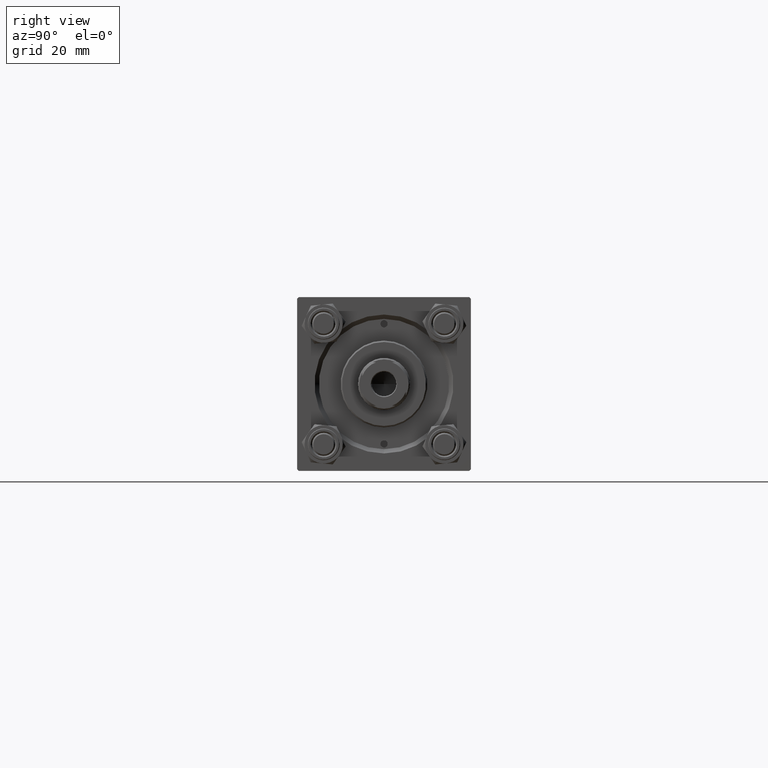
[diagram: clean part render]
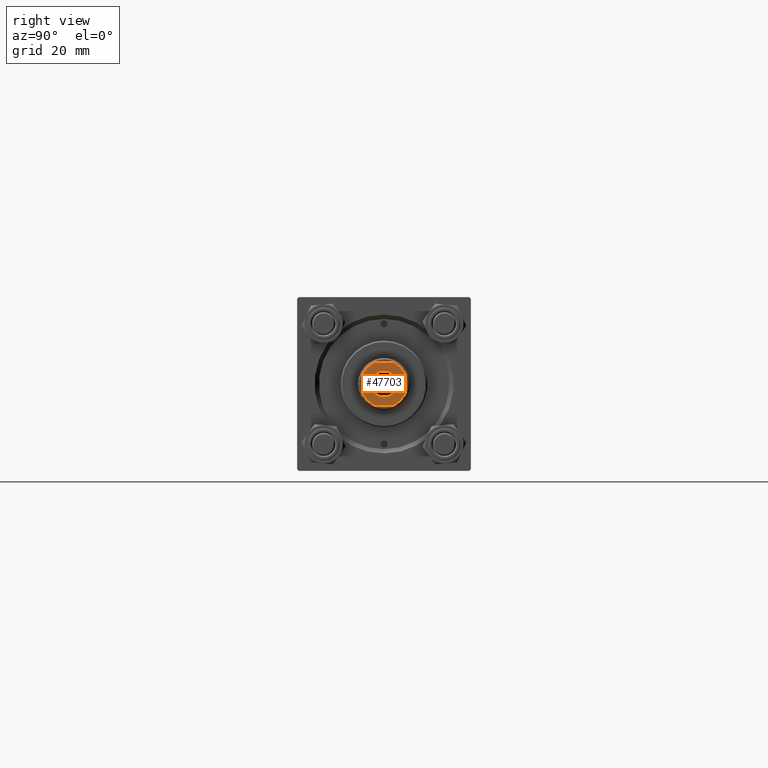
[diagram: same view with one face highlighted and labeled with its STEP entity id]
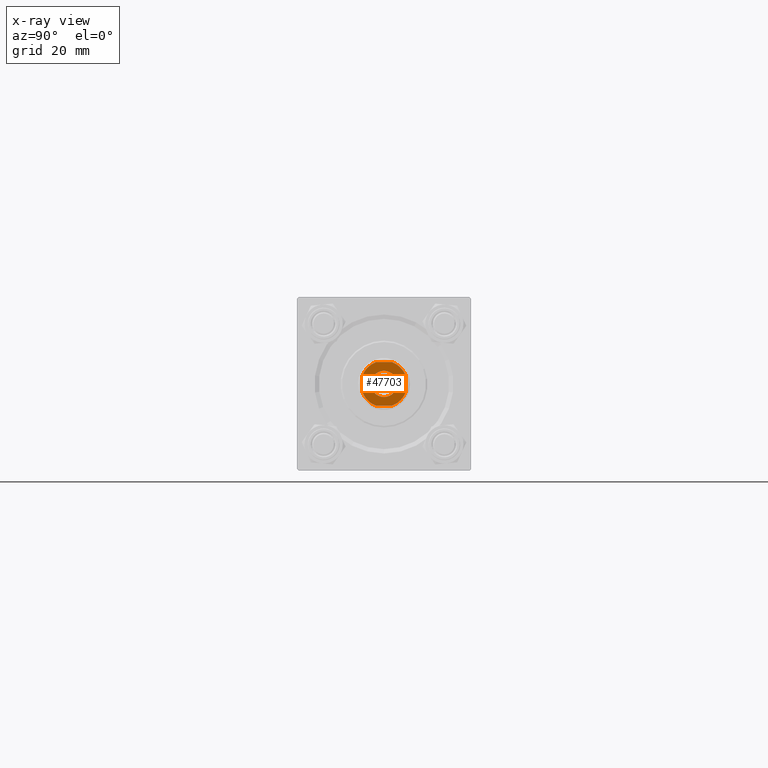
[diagram: x-ray of the same camera — body ghosted, the highlighted face saturated]
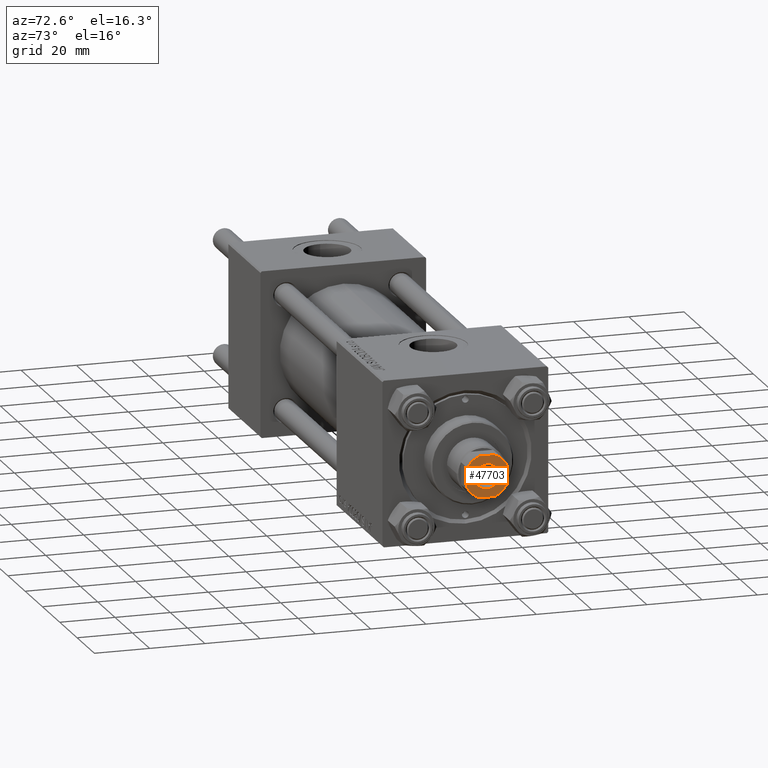
[diagram: same view with one face highlighted and labeled with its STEP entity id]
A machine part, right view. The second image highlights one B-rep face of the part: STEP entity #47703.
The next image is the same camera in x-ray: the body ghosted, the highlighted face saturated — about 0% of this face is hidden behind the body in this view.
A second angle (auxiliary view) of the same face is appended — the face is thin or edge-on in the first view.
In plain terms, the highlighted planar face has unit normal (1, 0, -0).
Its self-contained STEP definition (entity closure, byte-faithful):
#350 = DIRECTION ( 'NONE',  ( 1.000000000000000000, 0.000000000000000000, 0.000000000000000000 ) ) ;
#783 = DIRECTION ( 'NONE',  ( -0.000000000000000000, 0.000000000000000000, 1.000000000000000000 ) ) ;
#1038 = DIRECTION ( 'NONE',  ( 1.000000000000000000, 0.000000000000000000, 0.000000000000000000 ) ) ;
#1354 = DIRECTION ( 'NONE',  ( 0.000000000000000000, -0.000000000000000000, -1.000000000000000000 ) ) ;
#1366 = CARTESIAN_POINT ( 'NONE',  ( 7.500000000000000888, -2.783882181414929491, 166.0000000000000000 ) ) ;
#1853 = EDGE_CURVE ( 'NONE', #8274, #7431, #31455, .T. ) ;
#1884 = CARTESIAN_POINT ( 'NONE',  ( 0.000000000000000000, 0.000000000000000000, 166.0000000000000000 ) ) ;
#2526 = CARTESIAN_POINT ( 'NONE',  ( 7.500000000000000000, 7.500000000000000000, 166.0000000000000000 ) ) ;
#4205 = DIRECTION ( 'NONE',  ( -0.000000000000000000, 0.000000000000000000, 1.000000000000000000 ) ) ;
#5566 = DIRECTION ( 'NONE',  ( -1.156482317317871478E-16, 1.000000000000000000, -0.000000000000000000 ) ) ;
#5943 = ORIENTED_EDGE ( 'NONE', *, *, #1853, .T. ) ;
#6275 = DIRECTION ( 'NONE',  ( 1.000000000000000000, 0.000000000000000000, 0.000000000000000000 ) ) ;
#6680 = CIRCLE ( 'NONE', #35764, 4.550000000000039790 ) ;
#7431 = VERTEX_POINT ( 'NONE', #8761 ) ;
#7467 = EDGE_CURVE ( 'NONE', #30024, #44108, #16599, .T. ) ;
#7773 = EDGE_CURVE ( 'NONE', #7431, #8274, #6680, .T. ) ;
#7948 = AXIS2_PLACEMENT_3D ( 'NONE', #31765, #4205, #8750 ) ;
#8025 = DIRECTION ( 'NONE',  ( -0.000000000000000000, 0.000000000000000000, 1.000000000000000000 ) ) ;
#8232 = EDGE_CURVE ( 'NONE', #48111, #18994, #30495, .T. ) ;
#8240 = PLANE ( 'NONE',  #7948 ) ;
#8274 = VERTEX_POINT ( 'NONE', #26201 ) ;
#8439 = AXIS2_PLACEMENT_3D ( 'NONE', #42701, #8025, #38405 ) ;
#8750 = DIRECTION ( 'NONE',  ( 1.000000000000000000, 0.000000000000000000, 0.000000000000000000 ) ) ;
#8761 = CARTESIAN_POINT ( 'NONE',  ( 4.550000000000039790, 0.000000000000000000, 166.0000000000000000 ) ) ;
#9547 = CARTESIAN_POINT ( 'NONE',  ( -2.783882181415014312, 7.499999999999999112, 166.0000000000000000 ) ) ;
#9694 = CARTESIAN_POINT ( 'NONE',  ( -7.499999999999999112, 2.783882181415014756, 166.0000000000000000 ) ) ;
#10429 = AXIS2_PLACEMENT_3D ( 'NONE', #1884, #17309, #43649 ) ;
#10996 = AXIS2_PLACEMENT_3D ( 'NONE', #12458, #19784, #34995 ) ;
#12458 = CARTESIAN_POINT ( 'NONE',  ( 0.000000000000000000, 0.000000000000000000, 166.0000000000000000 ) ) ;
#13814 = ORIENTED_EDGE ( 'NONE', *, *, #7773, .T. ) ;
#14613 = DIRECTION ( 'NONE',  ( -0.000000000000000000, 0.000000000000000000, 1.000000000000000000 ) ) ;
#15529 = VECTOR ( 'NONE', #43673, 1000.000000000000000 ) ;
#16217 = EDGE_CURVE ( 'NONE', #34069, #48111, #43982, .T. ) ;
#16327 = FACE_OUTER_BOUND ( 'NONE', #20313, .T. ) ;
#16599 = LINE ( 'NONE', #40368, #15529 ) ;
#16728 = ORIENTED_EDGE ( 'NONE', *, *, #16217, .T. ) ;
#16871 = ORIENTED_EDGE ( 'NONE', *, *, #17311, .T. ) ;
#17309 = DIRECTION ( 'NONE',  ( 0.000000000000000000, -0.000000000000000000, -1.000000000000000000 ) ) ;
#17311 = EDGE_CURVE ( 'NONE', #25474, #29774, #31091, .T. ) ;
#17389 = VECTOR ( 'NONE', #350, 1000.000000000000000 ) ;
#18613 = ORIENTED_EDGE ( 'NONE', *, *, #7467, .T. ) ;
#18994 = VERTEX_POINT ( 'NONE', #9547 ) ;
#19123 = EDGE_CURVE ( 'NONE', #47716, #25474, #42858, .T. ) ;
#19784 = DIRECTION ( 'NONE',  ( -0.000000000000000000, 0.000000000000000000, 1.000000000000000000 ) ) ;
#20059 = CARTESIAN_POINT ( 'NONE',  ( 2.783882181414934820, 7.499999999999999112, 166.0000000000000000 ) ) ;
#20313 = EDGE_LOOP ( 'NONE', ( #42855, #16728, #22408, #25292, #18613, #45205, #29215, #16871 ) ) ;
#21310 = AXIS2_PLACEMENT_3D ( 'NONE', #22196, #14613, #6275 ) ;
#22196 = CARTESIAN_POINT ( 'NONE',  ( 0.000000000000000000, 0.000000000000000000, 166.0000000000000000 ) ) ;
#22408 = ORIENTED_EDGE ( 'NONE', *, *, #8232, .T. ) ;
#23672 = CARTESIAN_POINT ( 'NONE',  ( -2.783882181415011203, -7.500000000000000000, 166.0000000000000000 ) ) ;
#25292 = ORIENTED_EDGE ( 'NONE', *, *, #48349, .T. ) ;
#25474 = VERTEX_POINT ( 'NONE', #45317 ) ;
#26201 = CARTESIAN_POINT ( 'NONE',  ( -4.550000000000039790, 5.572142936120505645E-16, 166.0000000000000000 ) ) ;
#26698 = CARTESIAN_POINT ( 'NONE',  ( -7.500000000000000000, 7.499999999999998224, 166.0000000000000000 ) ) ;
#27223 = EDGE_LOOP ( 'NONE', ( #13814, #5943 ) ) ;
#29215 = ORIENTED_EDGE ( 'NONE', *, *, #19123, .T. ) ;
#29774 = VERTEX_POINT ( 'NONE', #1366 ) ;
#30024 = VERTEX_POINT ( 'NONE', #9694 ) ;
#30495 = LINE ( 'NONE', #26698, #40590 ) ;
#31091 = CIRCLE ( 'NONE', #8439, 7.999999999999972466 ) ;
#31455 = CIRCLE ( 'NONE', #10429, 4.550000000000039790 ) ;
#31765 = CARTESIAN_POINT ( 'NONE',  ( 0.000000000000000000, 0.000000000000000000, 166.0000000000000000 ) ) ;
#32214 = DIRECTION ( 'NONE',  ( 1.000000000000000000, 0.000000000000000000, 0.000000000000000000 ) ) ;
#32456 = CARTESIAN_POINT ( 'NONE',  ( 0.000000000000000000, 0.000000000000000000, 166.0000000000000000 ) ) ;
#33713 = VECTOR ( 'NONE', #5566, 1000.000000000000000 ) ;
#33817 = CIRCLE ( 'NONE', #49960, 8.000000000000000000 ) ;
#34069 = VERTEX_POINT ( 'NONE', #34283 ) ;
#34283 = CARTESIAN_POINT ( 'NONE',  ( 7.500000000000000888, 2.783882181414931267, 166.0000000000000000 ) ) ;
#34995 = DIRECTION ( 'NONE',  ( 1.000000000000000000, 0.000000000000000000, 0.000000000000000000 ) ) ;
#35023 = CARTESIAN_POINT ( 'NONE',  ( -7.499999999999998224, -7.500000000000000000, 166.0000000000000000 ) ) ;
#35703 = CARTESIAN_POINT ( 'NONE',  ( 0.000000000000000000, 0.000000000000000000, 166.0000000000000000 ) ) ;
#35764 = AXIS2_PLACEMENT_3D ( 'NONE', #32456, #1354, #32214 ) ;
#37593 = DIRECTION ( 'NONE',  ( -1.000000000000000000, -1.156482317317871478E-16, -0.000000000000000000 ) ) ;
#37652 = CIRCLE ( 'NONE', #10996, 8.000000000000000000 ) ;
#38405 = DIRECTION ( 'NONE',  ( 1.000000000000000000, 0.000000000000000000, 0.000000000000000000 ) ) ;
#40368 = CARTESIAN_POINT ( 'NONE',  ( -7.500000000000000000, 7.499999999999998224, 166.0000000000000000 ) ) ;
#40590 = VECTOR ( 'NONE', #37593, 1000.000000000000000 ) ;
#41545 = EDGE_CURVE ( 'NONE', #29774, #34069, #48832, .T. ) ;
#42065 = EDGE_CURVE ( 'NONE', #44108, #47716, #37652, .T. ) ;
#42701 = CARTESIAN_POINT ( 'NONE',  ( 0.000000000000000000, 0.000000000000000000, 166.0000000000000000 ) ) ;
#42855 = ORIENTED_EDGE ( 'NONE', *, *, #41545, .T. ) ;
#42858 = LINE ( 'NONE', #35023, #17389 ) ;
#43649 = DIRECTION ( 'NONE',  ( 1.000000000000000000, 0.000000000000000000, 0.000000000000000000 ) ) ;
#43655 = CARTESIAN_POINT ( 'NONE',  ( -7.499999999999997335, -2.783882181415016088, 166.0000000000000000 ) ) ;
#43673 = DIRECTION ( 'NONE',  ( 1.156482317317871725E-16, -1.000000000000000000, 0.000000000000000000 ) ) ;
#43905 = FACE_BOUND ( 'NONE', #27223, .T. ) ;
#43982 = CIRCLE ( 'NONE', #21310, 7.999999999999972466 ) ;
#44108 = VERTEX_POINT ( 'NONE', #43655 ) ;
#45205 = ORIENTED_EDGE ( 'NONE', *, *, #42065, .T. ) ;
#45317 = CARTESIAN_POINT ( 'NONE',  ( 2.783882181414932599, -7.500000000000000000, 166.0000000000000000 ) ) ;
#47703 = ADVANCED_FACE ( 'NONE', ( #43905, #16327 ), #8240, .T. ) ;
#47716 = VERTEX_POINT ( 'NONE', #23672 ) ;
#48111 = VERTEX_POINT ( 'NONE', #20059 ) ;
#48349 = EDGE_CURVE ( 'NONE', #18994, #30024, #33817, .T. ) ;
#48832 = LINE ( 'NONE', #2526, #33713 ) ;
#49960 = AXIS2_PLACEMENT_3D ( 'NONE', #35703, #783, #1038 ) ;